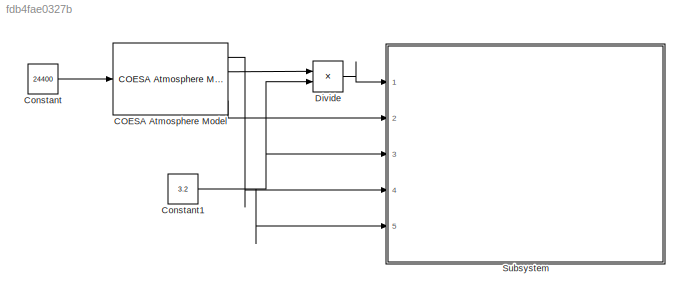
MODEL slx_fdb4fae0327b
KIND model
CONFIG AbsTol = auto
CONFIG EnableMultiTasking = off
CONFIG FixedStep = auto
CONFIG MaxStep = auto
CONFIG MinStep = auto
CONFIG RelTol = 1e-3
CONFIG SampleTimeConstraint = Unconstrained
CONFIG Solver = VariableStepAuto
CONFIG SolverName = VariableStepAuto
CONFIG StartTime = 0.0
CONFIG StopTime = 100
BLOCK [Reference] COESA Atmosphere Model  REF=aerolibatmos2/COESA Atmosphere Model
  Ports = [1, 4]
  SourceBlock = aerolibatmos2/COESA Atmosphere Model
  SourceProductBaseCode = AE
  SourceProductName = Aerospace Blockset
  SourceType = Atmosphere Model
BLOCK [Constant] Constant
  Value = 24400
BLOCK [Constant] Constant1
  Value = 3.2
BLOCK [Product] Divide
  InputSameDT = off
  Inputs = **
  OutDataTypeStr = Inherit: Inherit via internal rule
  Ports = [2, 1]
  RndMeth = Floor
  SaturateOnIntegerOverflow = off
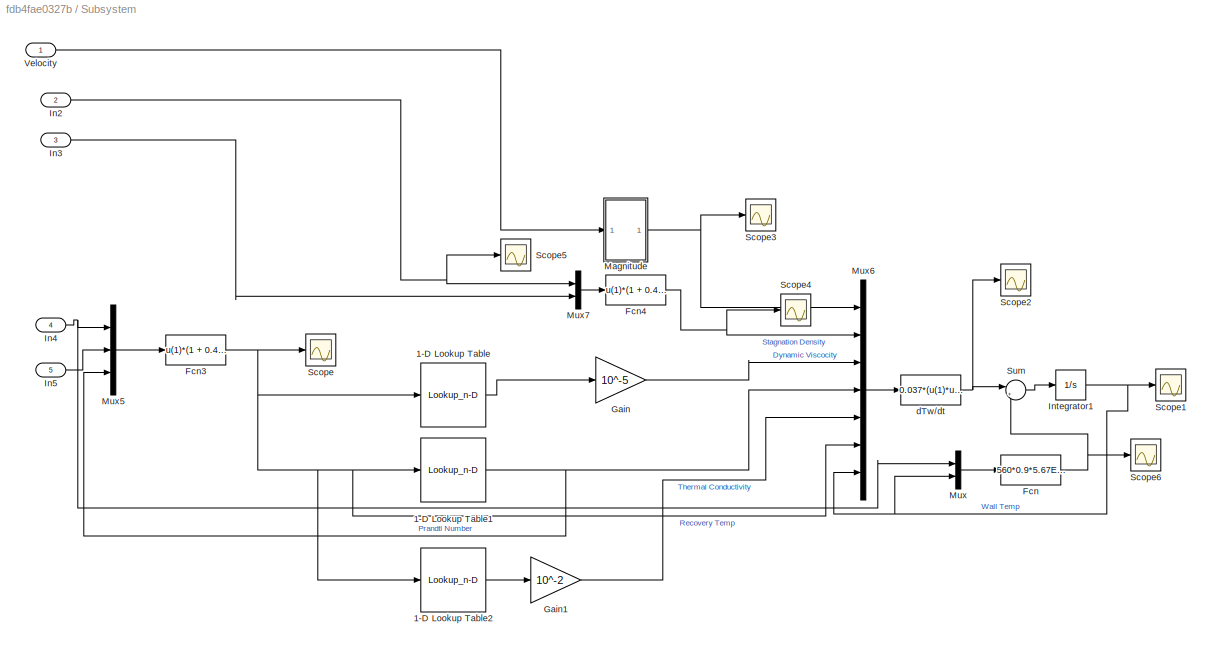
BLOCK [SubSystem] Subsystem
  Ports = [5]
  RequestExecContextInheritance = off
BLOCK [Lookup_n-D] Subsystem/1-D Lookup Table
  BreakpointsForDimension1 = air_data(:,1)
  InternalRulePriority = Speed
  NumberOfTableDimensions = 1
  Ports = [1, 1]
  RndMeth = Simplest
  Table = air_data(:,5)
BLOCK [Lookup_n-D] Subsystem/1-D Lookup Table1
  BreakpointsForDimension1 = air_data(:,1)
  InternalRulePriority = Speed
  NumberOfTableDimensions = 1
  Ports = [1, 1]
  RndMeth = Simplest
  Table = air_data(:,7)
BLOCK [Lookup_n-D] Subsystem/1-D Lookup Table2
  BreakpointsForDimension1 = air_data(:,1)
  InternalRulePriority = Speed
  NumberOfTableDimensions = 1
  Ports = [1, 1]
  RndMeth = Simplest
  Table = air_data(:,6)
BLOCK [Fcn] Subsystem/Fcn
  Expr = 560*0.9*5.67E-8*(u(2)^4 - u(1)^4)
BLOCK [Fcn] Subsystem/Fcn3
  Expr = u(1)*(1 + 0.4/2*u(2)^2*u(3)^(1/3))
BLOCK [Fcn] Subsystem/Fcn4
  Expr = u(1)*(1 + 0.4/2*u(2)^2)^(1/0.4)
BLOCK [Gain] Subsystem/Gain
  Gain = 10^-5
  OutDataTypeStr = Inherit: Inherit via internal rule
  ParamDataTypeStr = Inherit: Inherit via internal rule
  SaturateOnIntegerOverflow = off
BLOCK [Gain] Subsystem/Gain1
  Gain = 10^-2
  OutDataTypeStr = Inherit: Inherit via internal rule
  ParamDataTypeStr = Inherit: Inherit via internal rule
  SaturateOnIntegerOverflow = off
BLOCK [Inport] Subsystem/In2
  IconDisplay = Port number
  Port = 2
BLOCK [Inport] Subsystem/In3
  IconDisplay = Port number
  Port = 3
BLOCK [Inport] Subsystem/In4
  IconDisplay = Port number
  Port = 4
BLOCK [Inport] Subsystem/In5
  IconDisplay = Port number
  Port = 5
BLOCK [Integrator] Subsystem/Integrator1
  InitialCondition = 300
  Ports = [1, 1]
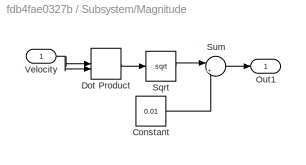
BLOCK [SubSystem] Subsystem/Magnitude
  Ports = [1, 1]
  RequestExecContextInheritance = off
BLOCK [Constant] Subsystem/Magnitude/Constant
  Value = 0.01
BLOCK [DotProduct] Subsystem/Magnitude/Dot Product
  OutDataTypeStr = Inherit: Inherit via internal rule
BLOCK [Outport] Subsystem/Magnitude/Out1
  IconDisplay = Port number
BLOCK [Sqrt] Subsystem/Magnitude/Sqrt
BLOCK [Sum] Subsystem/Magnitude/Sum
  IconShape = round
  InputSameDT = off
  Inputs = |++
  OutDataTypeStr = Inherit: Inherit via internal rule
  Ports = [2, 1]
  SaturateOnIntegerOverflow = off
BLOCK [Inport] Subsystem/Magnitude/Velocity
  IconDisplay = Port number
BLOCK [Mux] Subsystem/Mux
  DisplayOption = bar
  Inputs = 2
  Ports = [2, 1]
BLOCK [Mux] Subsystem/Mux5
  DisplayOption = bar
  Inputs = 3
  Ports = [3, 1]
BLOCK [Mux] Subsystem/Mux6
  DisplayOption = bar
  Inputs = 7
  Ports = [7, 1]
BLOCK [Mux] Subsystem/Mux7
  DisplayOption = bar
  Inputs = 2
  Ports = [2, 1]
BLOCK [Scope] Subsystem/Scope
  Floating = off
  NumInputPorts = 1
  Ports = [1]
  ScopeSpecificationString = Simulink.scopes.TimeScopeBlockCfg('CurrentConfiguration', extmgr.ConfigurationSet(extmgr.Configuration('Core','General UI',true),extmgr.Configuration('Core','Source UI',true),extmgr.Configuration('Sources','WiredSimulink',true,'DataLoggingVariableName','ScopeData1'),extmgr.Configuration('Visuals','Time Domain',true,'SerializedDisplays',{struct('MinYLimReal','519.29869','MaxYLimReal','719.29869','Y...<+1386ch>
BLOCK [Scope] Subsystem/Scope1
  Floating = off
  NumInputPorts = 1
  Ports = [1]
  ScopeSpecificationString = Simulink.scopes.TimeScopeBlockCfg('CurrentConfiguration', extmgr.ConfigurationSet(extmgr.Configuration('Core','General UI',true),extmgr.Configuration('Core','Source UI',true),extmgr.Configuration('Sources','WiredSimulink',true,'DataLoggingVariableName','ScopeData1'),extmgr.Configuration('Visuals','Time Domain',true,'SerializedDisplays',{struct('MinYLimReal','260.08962','MaxYLimReal','659.19342','Y...<+1413ch>
BLOCK [Scope] Subsystem/Scope2
  Floating = off
  NumInputPorts = 1
  Ports = [1]
  ScopeSpecificationString = Simulink.scopes.TimeScopeBlockCfg('CurrentConfiguration', extmgr.ConfigurationSet(extmgr.Configuration('Core','General UI',true),extmgr.Configuration('Core','Source UI',true),extmgr.Configuration('Sources','WiredSimulink',true,'DataLoggingVariableName','ScopeData2'),extmgr.Configuration('Visuals','Time Domain',true,'SerializedDisplays',{struct('MinYLimReal','-24.40224','MaxYLimReal','111.40737','Y...<+1375ch>
BLOCK [Scope] Subsystem/Scope3
  Floating = off
  NumInputPorts = 1
  Ports = [1]
  ScopeSpecificationString = Simulink.scopes.TimeScopeBlockCfg('CurrentConfiguration', extmgr.ConfigurationSet(extmgr.Configuration('Core','General UI',true),extmgr.Configuration('Core','Source UI',true),extmgr.Configuration('Sources','WiredSimulink',true,'DataLoggingVariableName','ScopeData3'),extmgr.Configuration('Visuals','Time Domain',true,'SerializedDisplays',{struct('MinYLimReal','853.77275','MaxYLimReal','1053.77275','...<+1386ch>
BLOCK [Scope] Subsystem/Scope4
  Floating = off
  NumInputPorts = 1
  Ports = [1]
  ScopeSpecificationString = Simulink.scopes.TimeScopeBlockCfg('CurrentConfiguration', extmgr.ConfigurationSet(extmgr.Configuration('Core','General UI',true),extmgr.Configuration('Core','Source UI',true),extmgr.Configuration('Sources','WiredSimulink',true,'DataLoggingVariableName','ScopeData3'),extmgr.Configuration('Visuals','Time Domain',true,'SerializedDisplays',{struct('MinYLimReal','0.60413','MaxYLimReal','0.80413','YLabe...<+1375ch>
BLOCK [Scope] Subsystem/Scope5
  Floating = off
  NumInputPorts = 1
  Ports = [1]
  ScopeSpecificationString = Simulink.scopes.TimeScopeBlockCfg('CurrentConfiguration', extmgr.ConfigurationSet(extmgr.Configuration('Core','General UI',true),extmgr.Configuration('Core','Source UI',true),extmgr.Configuration('Sources','WiredSimulink',true,'DataLoggingVariableName','ScopeData4'),extmgr.Configuration('Visuals','Time Domain',true,'SerializedDisplays',{struct('MinYLimReal','0.03341','MaxYLimReal','0.05341','YLabe...<+1360ch>
BLOCK [Scope] Subsystem/Scope6
  Floating = off
  NumInputPorts = 1
  Ports = [1]
  ScopeSpecificationString = Simulink.scopes.TimeScopeBlockCfg('CurrentConfiguration', extmgr.ConfigurationSet(extmgr.Configuration('Core','General UI',true),extmgr.Configuration('Core','Source UI',true),extmgr.Configuration('Sources','WiredSimulink',true,'DataLoggingVariableName','ScopeData1'),extmgr.Configuration('Visuals','Time Domain',true,'SerializedDisplays',{struct('MinYLimReal','-333212.20049','MaxYLimReal','4631330.1...<+1404ch>
BLOCK [Sum] Subsystem/Sum
  IconShape = round
  InputSameDT = off
  Inputs = |+-
  OutDataTypeStr = Inherit: Inherit via internal rule
  Ports = [2, 1]
  SaturateOnIntegerOverflow = off
BLOCK [Inport] Subsystem/Velocity
  IconDisplay = Port number
BLOCK [Fcn] Subsystem/dTw//dt
  Expr = 0.037*(u(1)*u(2)*32.6/u(3))^(4/5)*u(4)^(1/3)*u(5)*(u(6) - u(7))*560*4500/520
LINE COESA Atmosphere Model:1 -> Subsystem:4
LINE COESA Atmosphere Model:2 -> Divide:1
LINE COESA Atmosphere Model:4 -> Subsystem:2
NET Constant1:1 -> Divide:2, Subsystem:3, Subsystem:5
LINE Constant:1 -> COESA Atmosphere Model:1
LINE Divide:1 -> Subsystem:1
NET Subsystem/1-D Lookup Table1:1 -> Subsystem/Mux5:3, Subsystem/Mux6:4
LINE Subsystem/1-D Lookup Table2:1 -> Subsystem/Gain1:1
LINE Subsystem/1-D Lookup Table:1 -> Subsystem/Gain:1
NET Subsystem/Fcn3:1 -> Subsystem/1-D Lookup Table1:1, Subsystem/1-D Lookup Table2:1, Subsystem/1-D Lookup Table:1, Subsystem/Mux6:6, Subsystem/Scope:1
NET Subsystem/Fcn4:1 -> Subsystem/Mux6:2, Subsystem/Scope4:1
NET Subsystem/Fcn:1 -> Subsystem/Scope6:1, Subsystem/Sum:2
LINE Subsystem/Gain1:1 -> Subsystem/Mux6:5
LINE Subsystem/Gain:1 -> Subsystem/Mux6:3
NET Subsystem/In2:1 -> Subsystem/Mux7:1, Subsystem/Scope5:1
LINE Subsystem/In3:1 -> Subsystem/Mux7:2
NET Subsystem/In4:1 -> Subsystem/Mux5:1, Subsystem/Mux:1
LINE Subsystem/In5:1 -> Subsystem/Mux5:2
NET Subsystem/Integrator1:1 -> Subsystem/Mux6:7, Subsystem/Mux:2, Subsystem/Scope1:1
LINE Subsystem/Magnitude/Constant:1 -> Subsystem/Magnitude/Sum:2
LINE Subsystem/Magnitude/Dot Product:1 -> Subsystem/Magnitude/Sqrt:1
LINE Subsystem/Magnitude/Sqrt:1 -> Subsystem/Magnitude/Sum:1
LINE Subsystem/Magnitude/Sum:1 -> Subsystem/Magnitude/Out1:1
NET Subsystem/Magnitude/Velocity:1 -> Subsystem/Magnitude/Dot Product:1, Subsystem/Magnitude/Dot Product:2
NET Subsystem/Magnitude:1 -> Subsystem/Mux6:1, Subsystem/Scope3:1
LINE Subsystem/Mux5:1 -> Subsystem/Fcn3:1
LINE Subsystem/Mux6:1 -> Subsystem/dTw//dt:1
LINE Subsystem/Mux7:1 -> Subsystem/Fcn4:1
LINE Subsystem/Mux:1 -> Subsystem/Fcn:1
LINE Subsystem/Sum:1 -> Subsystem/Integrator1:1
LINE Subsystem/Velocity:1 -> Subsystem/Magnitude:1
NET Subsystem/dTw//dt:1 -> Subsystem/Scope2:1, Subsystem/Sum:1
note: NET lines group one-source signal fan-out (src -> all destinations, sorted); 1:1 wires keep LINE
